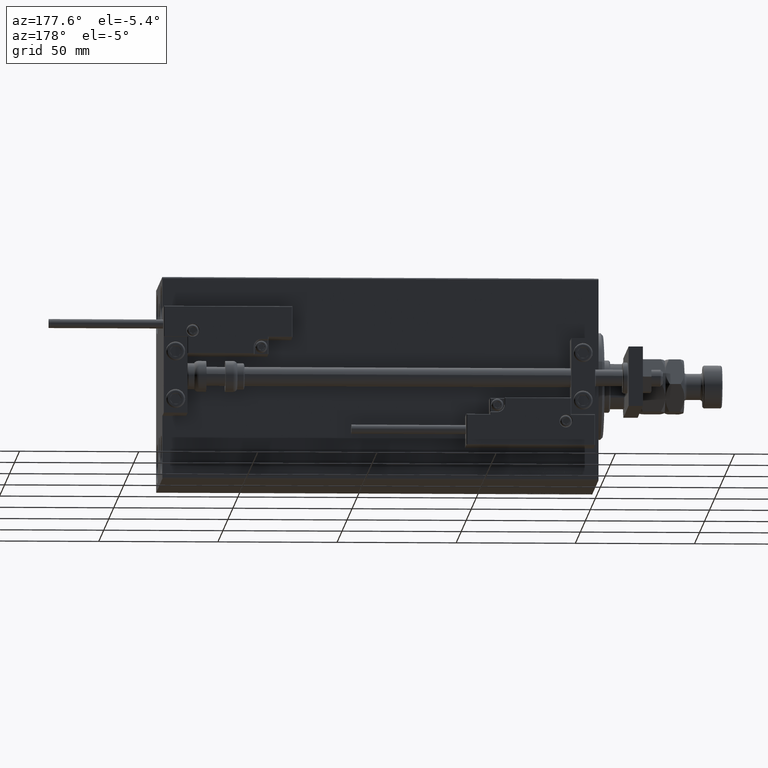
[diagram: clean part render]
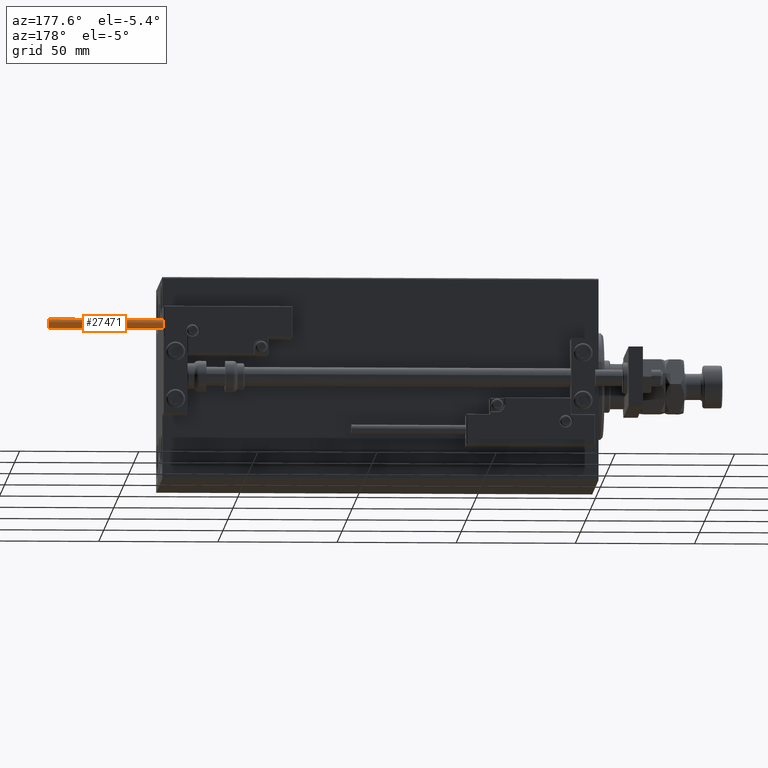
[diagram: same view with one face highlighted and labeled with its STEP entity id]
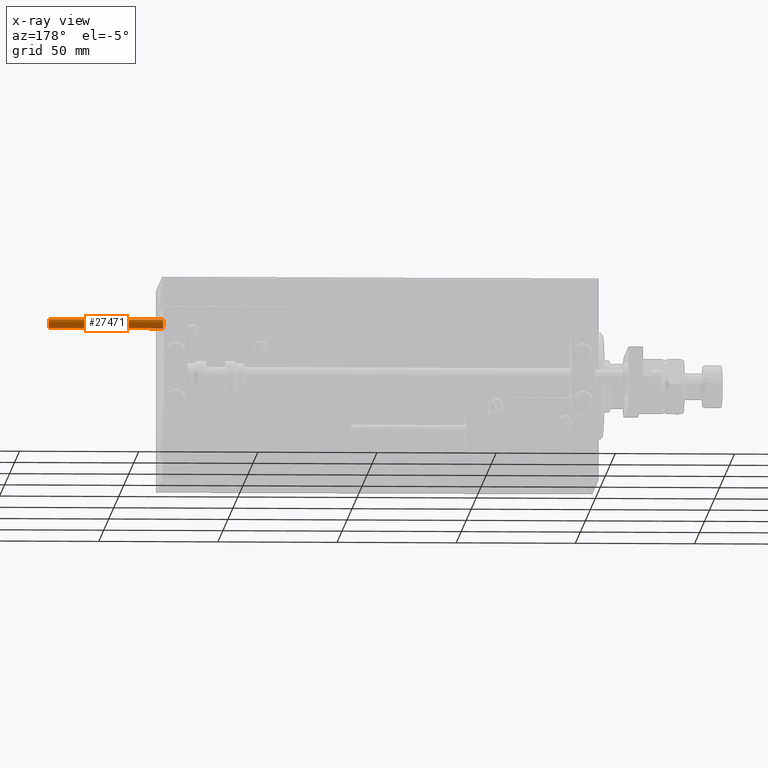
[diagram: x-ray of the same camera — body ghosted, the highlighted face saturated]
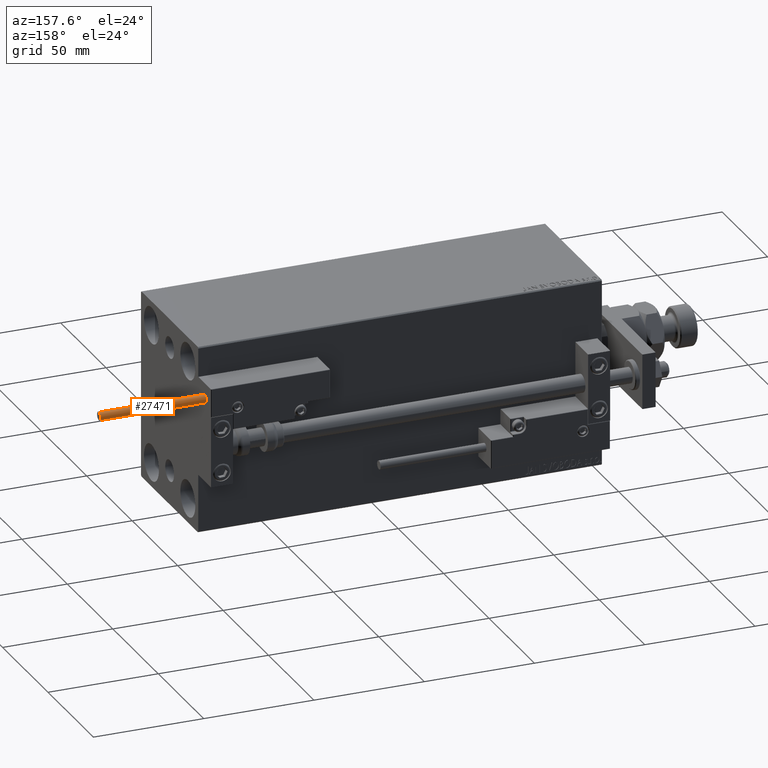
[diagram: same view with one face highlighted and labeled with its STEP entity id]
A machine part, auxiliary view. The second image highlights one B-rep face of the part: STEP entity #27471.
The next image is the same camera in x-ray: the body ghosted, the highlighted face saturated — about 0% of this face is hidden behind the body in this view.
A second angle (auxiliary view) of the same face is appended — the face is thin or edge-on in the first view.
In plain terms, the highlighted cylindrical surface (edge-blend (fillet) strip) has radius 1.9 mm, axis along (-1, -0, 0).
Its self-contained STEP definition (entity closure, byte-faithful):
#682 = AXIS2_PLACEMENT_3D ( 'NONE', #49695, #26156, #42115 ) ;
#2942 = ORIENTED_EDGE ( 'NONE', *, *, #22653, .T. ) ;
#3802 = EDGE_CURVE ( 'NONE', #23175, #27260, #25586, .T. ) ;
#5750 = LINE ( 'NONE', #13593, #49245 ) ;
#6957 = ORIENTED_EDGE ( 'NONE', *, *, #3802, .T. ) ;
#8049 = AXIS2_PLACEMENT_3D ( 'NONE', #45347, #9498, #25463 ) ;
#9112 = CARTESIAN_POINT ( 'NONE',  ( 1.899999999999999467, 2.326828918379970872E-16, 48.00000000000000000 ) ) ;
#9498 = DIRECTION ( 'NONE',  ( 0.000000000000000000, 0.000000000000000000, 1.000000000000000000 ) ) ;
#10978 = VERTEX_POINT ( 'NONE', #47045 ) ;
#12777 = LINE ( 'NONE', #9112, #26531 ) ;
#13593 = CARTESIAN_POINT ( 'NONE',  ( -1.899999999999999467, 0.000000000000000000, 48.00000000000000000 ) ) ;
#14553 = CYLINDRICAL_SURFACE ( 'NONE', #17347, 1.899999999999999467 ) ;
#17347 = AXIS2_PLACEMENT_3D ( 'NONE', #30535, #46473, #30802 ) ;
#20769 = CARTESIAN_POINT ( 'NONE',  ( 1.899999999999999467, 2.326828918379970872E-16, 48.00000000000000000 ) ) ;
#22653 = EDGE_CURVE ( 'NONE', #41488, #23175, #12777, .T. ) ;
#22938 = FACE_OUTER_BOUND ( 'NONE', #35369, .T. ) ;
#23175 = VERTEX_POINT ( 'NONE', #31739 ) ;
#24352 = ORIENTED_EDGE ( 'NONE', *, *, #27895, .F. ) ;
#25463 = DIRECTION ( 'NONE',  ( 1.000000000000000000, 0.000000000000000000, 0.000000000000000000 ) ) ;
#25586 = CIRCLE ( 'NONE', #8049, 1.899999999999999467 ) ;
#26156 = DIRECTION ( 'NONE',  ( 0.000000000000000000, 0.000000000000000000, 1.000000000000000000 ) ) ;
#26531 = VECTOR ( 'NONE', #32694, 1000.000000000000000 ) ;
#27260 = VERTEX_POINT ( 'NONE', #33704 ) ;
#27471 = ADVANCED_FACE ( 'NONE', ( #22938 ), #14553, .T. ) ;
#27895 = EDGE_CURVE ( 'NONE', #41488, #10978, #49116, .T. ) ;
#30535 = CARTESIAN_POINT ( 'NONE',  ( 0.000000000000000000, 0.000000000000000000, 48.00000000000000000 ) ) ;
#30802 = DIRECTION ( 'NONE',  ( -1.000000000000000000, 0.000000000000000000, 0.000000000000000000 ) ) ;
#31739 = CARTESIAN_POINT ( 'NONE',  ( 1.899999999999999467, 2.326828918379970872E-16, 0.000000000000000000 ) ) ;
#32694 = DIRECTION ( 'NONE',  ( -0.000000000000000000, -0.000000000000000000, -1.000000000000000000 ) ) ;
#33704 = CARTESIAN_POINT ( 'NONE',  ( -1.899999999999999467, 0.000000000000000000, 0.000000000000000000 ) ) ;
#35369 = EDGE_LOOP ( 'NONE', ( #24352, #2942, #6957, #37625 ) ) ;
#37625 = ORIENTED_EDGE ( 'NONE', *, *, #45366, .F. ) ;
#41488 = VERTEX_POINT ( 'NONE', #20769 ) ;
#42115 = DIRECTION ( 'NONE',  ( 1.000000000000000000, 0.000000000000000000, 0.000000000000000000 ) ) ;
#45025 = DIRECTION ( 'NONE',  ( -0.000000000000000000, -0.000000000000000000, -1.000000000000000000 ) ) ;
#45347 = CARTESIAN_POINT ( 'NONE',  ( 0.000000000000000000, 0.000000000000000000, 0.000000000000000000 ) ) ;
#45366 = EDGE_CURVE ( 'NONE', #10978, #27260, #5750, .T. ) ;
#46473 = DIRECTION ( 'NONE',  ( -0.000000000000000000, -0.000000000000000000, -1.000000000000000000 ) ) ;
#47045 = CARTESIAN_POINT ( 'NONE',  ( -1.899999999999999467, 0.000000000000000000, 48.00000000000000000 ) ) ;
#49116 = CIRCLE ( 'NONE', #682, 1.899999999999999467 ) ;
#49245 = VECTOR ( 'NONE', #45025, 1000.000000000000000 ) ;
#49695 = CARTESIAN_POINT ( 'NONE',  ( 0.000000000000000000, 0.000000000000000000, 48.00000000000000000 ) ) ;